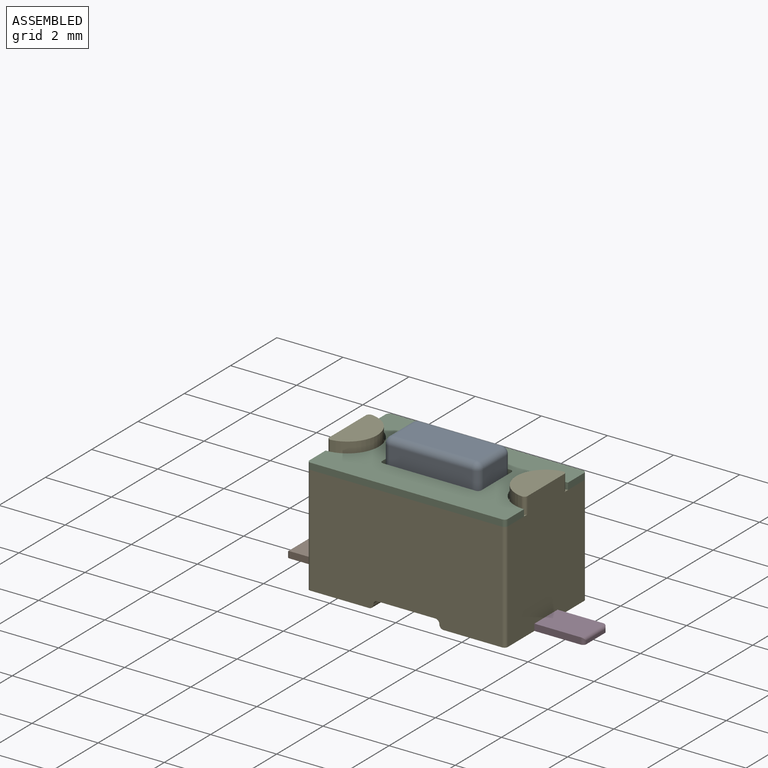
[diagram: assembled view]
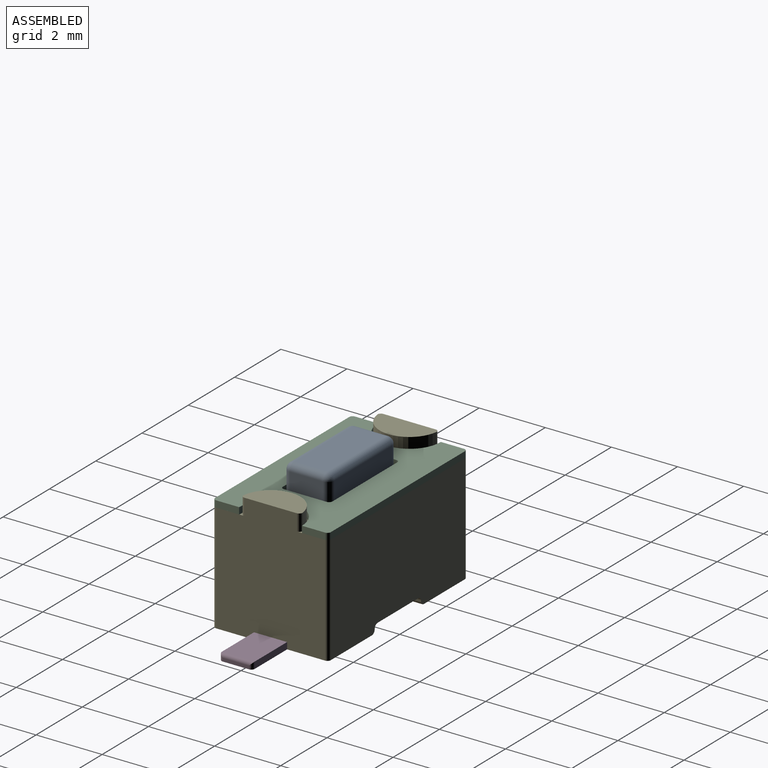
[diagram: assembled view, second angle]
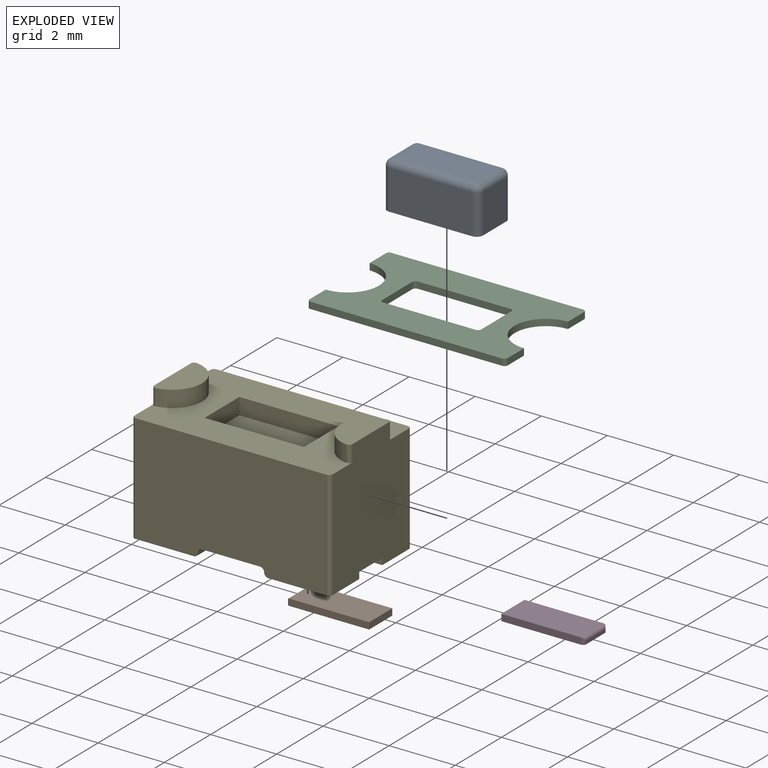
[diagram: exploded view]
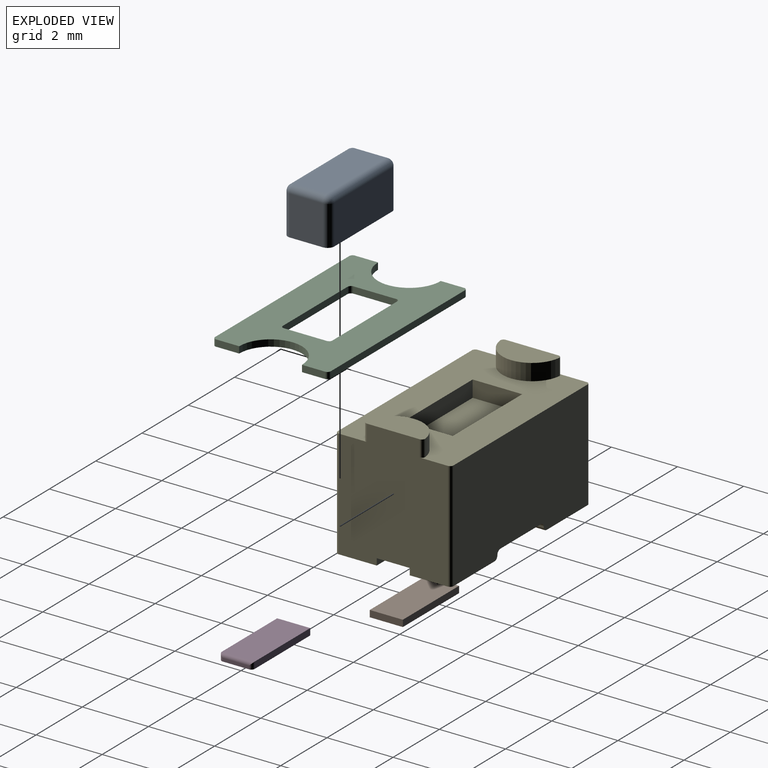
[diagram: exploded view, second angle]
ASSEMBLY  parts=5 mates=4
PART A: 18 faces, bbox 2.9x1.4x1.4 mm
  f0: plane 2.5x1.2mm, normal (0,1,0), area 3mm2, adj f5,f8,f14,f17
  f1: plane 1.2x1mm, normal (-1,0,0), area 1.2mm2, adj f5,f11,f15,f17
  f2: plane 2.5x1.2mm, normal (0,-1,0), area 3mm2, adj f5,f6,f10,f11
  f3: plane 1.2x1mm, normal (1,0,0), area 1.2mm2, adj f5,f6,f8,f9
  f4: plane 2.5x1mm, normal (0,0,1), area 2.5mm2, adj f9,f10,f14,f15
  f5: plane 2.9x1.4mm, normal (0,0,-1), area 4mm2, adj f0,f1,f2,f3,f6,f8,f11,f17
  f6: cylinder r=0.2mm len=1.2mm, axis (0,0,1), area 0.4mm2, adj f2,f3,f5,f7
  f7: sphere r=0.2mm, area 0.1mm2, adj f6,f9,f10
  f8: cylinder r=0.2mm len=1.2mm, axis (0,0,-1), area 0.4mm2, adj f0,f3,f5,f12
  f9: cylinder r=0.2mm len=1mm, axis (0,-1,0), area 0.3mm2, adj f3,f4,f7,f12
  f10: cylinder r=0.2mm len=2.5mm, axis (-1,0,0), area 0.8mm2, adj f2,f4,f7,f13
  f11: cylinder r=0.2mm len=1.2mm, axis (0,0,-1), area 0.4mm2, adj f1,f2,f5,f13
  f12: sphere r=0.2mm, area 0.1mm2, adj f8,f9,f14
  f13: sphere r=0.2mm, area 0.1mm2, adj f10,f11,f15
  f14: cylinder r=0.2mm len=2.5mm, axis (1,0,0), area 0.8mm2, adj f0,f4,f12,f16
  f15: cylinder r=0.2mm len=1mm, axis (0,1,0), area 0.3mm2, adj f1,f4,f13,f16
  f16: sphere r=0.2mm, area 0.1mm2, adj f14,f15,f17
  f17: cylinder r=0.2mm len=1.2mm, axis (0,0,1), area 0.4mm2, adj f0,f1,f5,f16
PART B: 9 faces, bbox 2.5x1x0.2 mm
  f0: plane 2.4x0.2mm, normal (0,1,0), area 0.5mm2, adj f3,f4,f5,f8
  f1: plane 0.8x0.1mm, normal (-1,0,0), area 0.1mm2, adj f5,f6,f7,f8
  f2: plane 2.4x0.2mm, normal (0,-1,0), area 0.5mm2, adj f3,f4,f5,f6
  f3: plane 1x0.2mm, normal (1,0,0), area 0.2mm2, adj f0,f2,f4,f5
  f4: plane 2.4x1mm, normal (0,0,1), area 2.4mm2, adj f0,f2,f3,f7
  f5: plane 2.5x1mm, normal (0,0,-1), area 2.5mm2, adj f0,f1,f2,f3,f6,f8
  f6: cylinder r=0.1mm len=0.2mm, axis (0,0,-1), area 0mm2, adj f1,f2,f5,f7
  f7: cylinder r=0.1mm len=1mm, axis (0,1,0), area 0.1mm2, adj f1,f4,f6,f8
  f8: cylinder r=0.1mm len=0.2mm, axis (0,0,1), area 0mm2, adj f0,f1,f5,f7
PART C: 22 faces, bbox 6x3.5x0.2 mm
  f0: cylinder r=0.95mm len=1.9mm, axis (0,0,-1), area 0.6mm2, adj f1,f11,f12,f13
  f1: plane 0.7x0.2mm, normal (-1,0,0), area 0.1mm2, adj f0,f12,f13,f18
  f2: plane 5.8x0.2mm, normal (0,-1,0), area 1.2mm2, adj f12,f13,f18,f19
  f3: plane 0.7x0.2mm, normal (1,0,0), area 0.1mm2, adj f4,f12,f13,f19
  f4: cylinder r=0.95mm len=1.9mm, axis (0,0,-1), area 0.6mm2, adj f3,f5,f12,f13
  f5: plane 0.7x0.2mm, normal (1,0,0), area 0.1mm2, adj f4,f12,f13,f20
  f6: plane 5.8x0.2mm, normal (0,1,0), area 1.2mm2, adj f12,f13,f20,f21
  f7: plane 1.3x0.2mm, normal (1,0,0), area 0.3mm2, adj f12,f13,f14,f17
  f8: plane 2.8x0.2mm, normal (0,-1,0), area 0.6mm2, adj f12,f13,f14,f15
  f9: plane 1.3x0.2mm, normal (-1,0,0), area 0.3mm2, adj f12,f13,f15,f16
  f10: plane 2.8x0.2mm, normal (0,1,0), area 0.6mm2, adj f12,f13,f16,f17
  f11: plane 0.7x0.2mm, normal (-1,0,0), area 0.1mm2, adj f0,f12,f13,f21
  f12: plane 6x3.5mm, normal (0,0,1), area 13.7mm2, adj f0,f1,f2,f3,f4,f5,f6,f7
  f13: plane 6x3.5mm, normal (0,0,-1), area 13.7mm2, adj f0,f1,f2,f3,f4,f5,f6,f7
  f14: cylinder r=0.1mm len=0.2mm, axis (0,0,-1), area 0mm2, adj f7,f8,f12,f13
  f15: cylinder r=0.1mm len=0.2mm, axis (0,0,1), area 0mm2, adj f8,f9,f12,f13
  f16: cylinder r=0.1mm len=0.2mm, axis (0,0,-1), area 0mm2, adj f9,f10,f12,f13
  f17: cylinder r=0.1mm len=0.2mm, axis (0,0,1), area 0mm2, adj f7,f10,f12,f13
  f18: cylinder r=0.1mm len=0.2mm, axis (0,0,-1), area 0mm2, adj f1,f2,f12,f13
  f19: cylinder r=0.1mm len=0.2mm, axis (0,0,1), area 0mm2, adj f2,f3,f12,f13
  f20: cylinder r=0.1mm len=0.2mm, axis (0,0,-1), area 0mm2, adj f5,f6,f12,f13
  f21: cylinder r=0.1mm len=0.2mm, axis (0,0,1), area 0mm2, adj f6,f11,f12,f13
PART D: same geometry as B
PART E: 37 faces, bbox 6x3.5x3.8 mm
  f0: plane 3.5x1.88mm, normal (0,0,-1), area 5.6mm2, adj f3,f4,f6,f20,f21,f25,f33,f34
  f1: plane 3.8x3.3mm, normal (-1,0,0), area 11.5mm2, adj f2,f5,f13,f18,f19,f22,f23,f29
  f2: plane 3.5x1.88mm, normal (0,0,-1), area 5.6mm2, adj f1,f3,f4,f22,f23,f27,f29,f30
  f3: plane 5.8x3.3mm, normal (0,-1,0), area 18.6mm2, adj f0,f2,f5,f20,f23,f24,f25,f26
  f4: plane 5.8x3.3mm, normal (0,1,0), area 18.6mm2, adj f0,f2,f5,f21,f22,f24,f25,f26
  f5: plane 6x3.5mm, normal (0,0,1), area 14mm2, adj f1,f3,f4,f6,f7,f8,f9,f10
  f6: plane 3.8x3.3mm, normal (1,0,0), area 11.5mm2, adj f0,f5,f15,f16,f17,f20,f21,f33
  f7: plane 1.5x0.5mm, normal (1,0,0), area 0.8mm2, adj f5,f8,f10,f11
  f8: plane 3x0.5mm, normal (0,1,0), area 1.5mm2, adj f5,f7,f9,f11
  f9: plane 1.5x0.5mm, normal (-1,0,0), area 0.8mm2, adj f5,f8,f10,f11
  f10: plane 3x0.5mm, normal (0,-1,0), area 1.5mm2, adj f5,f7,f9,f11
  f11: plane 3x1.5mm, normal (0,0,1), area 4.5mm2, adj f7,f8,f9,f10
  f12: cylinder r=0.9mm len=1.79mm, axis (0,0,-1), area 1.3mm2, adj f5,f13,f18,f19
  f13: plane 1.79x0.9mm, normal (0,0,1), area 1.3mm2, adj f1,f12,f18,f19
  f14: cylinder r=0.9mm len=1.79mm, axis (0,0,-1), area 1.3mm2, adj f5,f15,f16,f17
  f15: plane 1.79x0.9mm, normal (0,0,1), area 1.3mm2, adj f6,f14,f16,f17
  f16: cylinder r=0.1mm len=0.5mm, axis (0,0,-1), area 0.1mm2, adj f5,f6,f14,f15
  f17: cylinder r=0.1mm len=0.5mm, axis (0,0,-1), area 0.1mm2, adj f5,f6,f14,f15
  f18: cylinder r=0.1mm len=0.5mm, axis (0,0,-1), area 0.1mm2, adj f1,f5,f12,f13
  f19: cylinder r=0.1mm len=0.5mm, axis (0,0,-1), area 0.1mm2, adj f1,f5,f12,f13
  f20: cylinder r=0.1mm len=3.3mm, axis (0,0,1), area 0.5mm2, adj f0,f3,f5,f6
  f21: cylinder r=0.1mm len=3.3mm, axis (0,0,-1), area 0.5mm2, adj f0,f4,f5,f6
  f22: cylinder r=0.1mm len=3.3mm, axis (0,0,1), area 0.5mm2, adj f1,f2,f4,f5
  f23: cylinder r=0.1mm len=3.3mm, axis (0,0,-1), area 0.5mm2, adj f1,f2,f3,f5
  f24: plane 3.5x1.75mm, normal (0,0,-1), area 6.1mm2, adj f3,f4,f26,f28
  f25: cylinder r=0.12mm len=3.5mm, axis (0,1,0), area 0.7mm2, adj f0,f3,f4,f26
  f26: cylinder r=0.12mm len=3.5mm, axis (0,-1,0), area 0.7mm2, adj f3,f4,f24,f25
  f27: cylinder r=0.12mm len=3.5mm, axis (0,-1,0), area 0.7mm2, adj f2,f3,f4,f28
  f28: cylinder r=0.12mm len=3.5mm, axis (0,1,0), area 0.7mm2, adj f3,f4,f24,f27
  f29: plane 1x0.2mm, normal (0,1,0), area 0.2mm2, adj f1,f2,f31,f32
  f30: plane 1x0.2mm, normal (0,-1,0), area 0.2mm2, adj f1,f2,f31,f32
  f31: plane 1x0.2mm, normal (-1,0,0), area 0.2mm2, adj f2,f29,f30,f32
  f32: plane 1x1mm, normal (0,0,-1), area 1mm2, adj f1,f29,f30,f31
  f33: plane 1x0.2mm, normal (0,1,0), area 0.2mm2, adj f0,f6,f34,f36
  f34: plane 1x0.2mm, normal (1,0,0), area 0.2mm2, adj f0,f33,f35,f36
  f35: plane 1x0.2mm, normal (0,-1,0), area 0.2mm2, adj f0,f6,f34,f36
  f36: plane 1x1mm, normal (0,0,-1), area 1mm2, adj f6,f33,f34,f35
PLACE A t=(-4.11,-0.49,3.74)mm
PLACE B t=(-7.36,-0.49,0.94)mm
PLACE C t=(-4.11,-0.49,4.24)mm
PLACE D rot(axis=(0,0,1),180deg) t=(-0.86,-0.49,0.94)mm
PLACE E t=(-1.11,-2.24,0.94)mm
MATE fastened D.f4 <-> E.f36  axis (0,0,1) through (-2.11,-0.49,1.14)mm
MATE fastened A.f5 <-> E.f11  axis (0,0,-1) through (-4.11,-0.49,3.74)mm
MATE fastened C.f0 <-> E.f12  axis (0,0,-1) through (-7.11,-0.49,4.24)mm
MATE fastened B.f4 <-> E.f32  axis (0,0,1) through (-6.11,-0.49,1.14)mm
